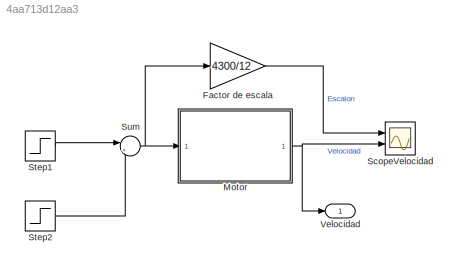
MODEL slx_4aa713d12aa3
KIND model
CONFIG AbsTol = auto
CONFIG FixedStep = auto
CONFIG MaxStep = auto
CONFIG MinStep = auto
CONFIG RelTol = 1e-3
CONFIG SampleTimeConstraint = Unconstrained
CONFIG Solver = ode45
CONFIG SolverMode = Auto
CONFIG SolverName = ode45
CONFIG StartTime = 0.0
CONFIG StopTime = 0.5
BLOCK [Gain] Factor de escala
  Gain = 4300/12
  OutDataTypeStr = Inherit: Inherit via internal rule
  ParamDataTypeStr = Inherit: Inherit via internal rule
  SaturateOnIntegerOverflow = off
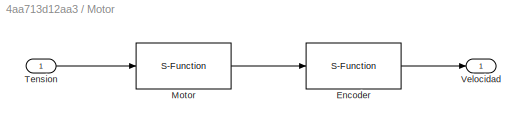
BLOCK [SubSystem] Motor
  Ports = [1, 1]
  RequestExecContextInheritance = off
BLOCK [S-Function] Motor/Encoder
  EnableBusSupport = off
  FunctionName = encoder_a_rpm
  Parameters = 0.00001, 0.005,150
  Ports = [1, 1]
  SFunctionDeploymentMode = off
BLOCK [S-Function] Motor/Motor
  EnableBusSupport = off
  FunctionName = dcmotor_qenc
  Parameters = 150
  Ports = [1, 1]
  SFunctionDeploymentMode = off
BLOCK [Inport] Motor/Tension
  IconDisplay = Port number
BLOCK [Outport] Motor/Velocidad
  IconDisplay = Port number
BLOCK [Scope] ScopeVelocidad
  Floating = off
  NumInputPorts = 2
  Ports = [2]
  ScopeSpecificationString = Simulink.scopes.TimeScopeBlockCfg('CurrentConfiguration', extmgr.ConfigurationSet(extmgr.Configuration('Core','General UI',true),extmgr.Configuration('Core','Source UI',true),extmgr.Configuration('Sources','WiredSimulink',true),extmgr.Configuration('Visuals','Time Domain',true,'SerializedDisplays',{struct('MinYLimReal','-545.00000','MaxYLimReal','4905.00000','YLabelReal','','MinYLimMag',' 0.00000'...<+1429ch>
BLOCK [Step] Step1
  After = 6
  SampleTime = 0
  Time = 0
BLOCK [Step] Step2
  After = 6
  SampleTime = 0
  Time = 0.25
BLOCK [Sum] Sum
  IconShape = round
  InputSameDT = off
  Inputs = |++
  OutDataTypeStr = Inherit: Inherit via internal rule
  Ports = [2, 1]
  SaturateOnIntegerOverflow = off
BLOCK [Outport] Velocidad
  IconDisplay = Port number
LINE Factor de escala:1 -> ScopeVelocidad:1
LINE Motor/Encoder:1 -> Motor/Velocidad:1
LINE Motor/Motor:1 -> Motor/Encoder:1
LINE Motor/Tension:1 -> Motor/Motor:1
NET Motor:1 -> ScopeVelocidad:2, Velocidad:1
LINE Step1:1 -> Sum:1
LINE Step2:1 -> Sum:2
NET Sum:1 -> Factor de escala:1, Motor:1
note: NET lines group one-source signal fan-out (src -> all destinations, sorted); 1:1 wires keep LINE
